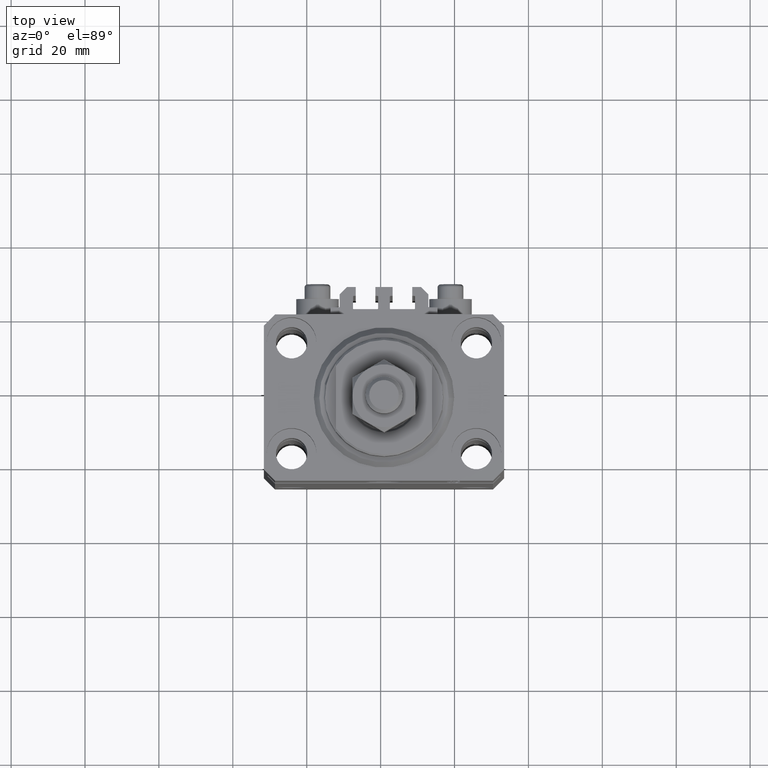
[diagram: clean part render]
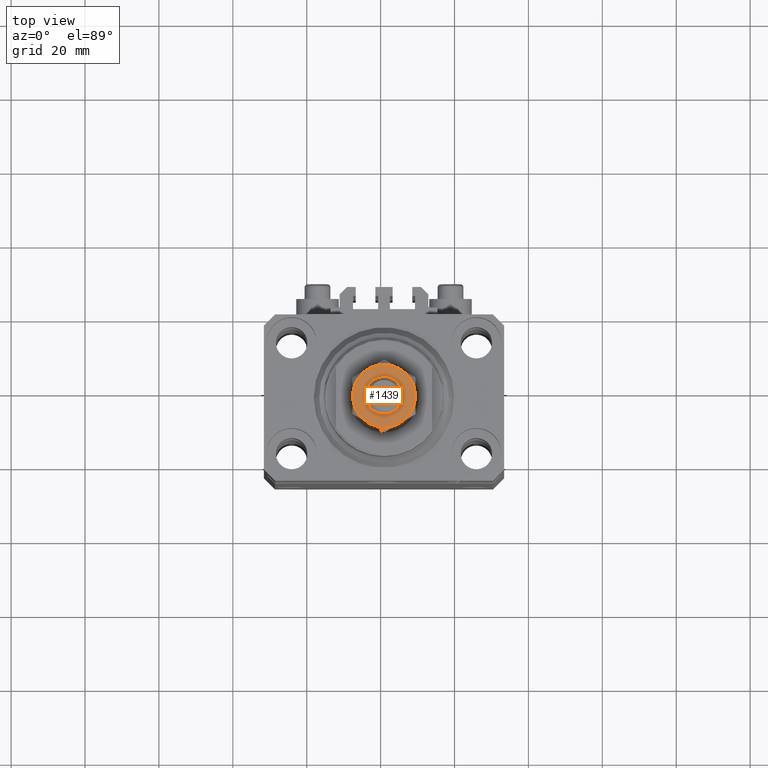
[diagram: same view with one face highlighted and labeled with its STEP entity id]
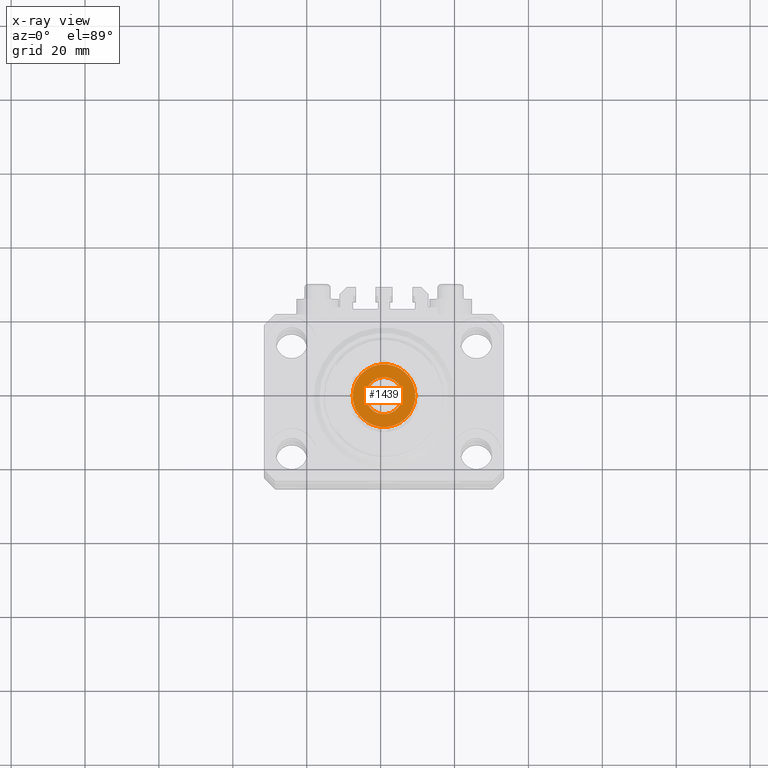
[diagram: x-ray of the same camera — body ghosted, the highlighted face saturated]
A machine part, top view. The second image highlights one B-rep face of the part: STEP entity #1439.
The next image is the same camera in x-ray: the body ghosted, the highlighted face saturated — about 0% of this face is hidden behind the body in this view.
In plain terms, the highlighted planar face has unit normal (0, 0, 1).
Its self-contained STEP definition (entity closure, byte-faithful):
#116 = VERTEX_POINT ( 'NONE', #26480 ) ;
#499 = EDGE_CURVE ( 'NONE', #37170, #18549, #37032, .T. ) ;
#715 = DIRECTION ( 'NONE',  ( 1.000000000000000000, 0.000000000000000000, 0.000000000000000000 ) ) ;
#1439 = ADVANCED_FACE ( 'NONE', ( #24409, #28880 ), #39626, .T. ) ;
#2340 = EDGE_CURVE ( 'NONE', #116, #26099, #45126, .T. ) ;
#2808 = AXIS2_PLACEMENT_3D ( 'NONE', #4213, #8452, #715 ) ;
#3590 = VERTEX_POINT ( 'NONE', #24716 ) ;
#3953 = CARTESIAN_POINT ( 'NONE',  ( 0.000000000000000000, 0.000000000000000000, 14.00000000000000000 ) ) ;
#4049 = EDGE_CURVE ( 'NONE', #13481, #40946, #43630, .T. ) ;
#4213 = CARTESIAN_POINT ( 'NONE',  ( 0.000000000000000000, 0.000000000000000000, 14.00000000000000000 ) ) ;
#5261 = CARTESIAN_POINT ( 'NONE',  ( 0.000000000000000000, 0.000000000000000000, 14.00000000000000000 ) ) ;
#5267 = CARTESIAN_POINT ( 'NONE',  ( -8.499999999999996447, 0.000000000000000000, 14.00000000000000000 ) ) ;
#6450 = DIRECTION ( 'NONE',  ( 0.000000000000000000, 0.000000000000000000, 1.000000000000000000 ) ) ;
#8178 = CIRCLE ( 'NONE', #36008, 8.499999999999996447 ) ;
#8368 = AXIS2_PLACEMENT_3D ( 'NONE', #10691, #6450, #21880 ) ;
#8452 = DIRECTION ( 'NONE',  ( 0.000000000000000000, -0.000000000000000000, 1.000000000000000000 ) ) ;
#9175 = ORIENTED_EDGE ( 'NONE', *, *, #499, .T. ) ;
#9680 = CARTESIAN_POINT ( 'NONE',  ( 0.000000000000000000, 0.000000000000000000, 14.00000000000000000 ) ) ;
#10522 = CIRCLE ( 'NONE', #38355, 5.000000000000000000 ) ;
#10691 = CARTESIAN_POINT ( 'NONE',  ( 0.000000000000000000, 0.000000000000000000, 14.00000000000000000 ) ) ;
#12746 = EDGE_LOOP ( 'NONE', ( #9175, #24530 ) ) ;
#12753 = DIRECTION ( 'NONE',  ( 0.000000000000000000, -0.000000000000000000, 1.000000000000000000 ) ) ;
#13473 = DIRECTION ( 'NONE',  ( 1.000000000000000000, 0.000000000000000000, 0.000000000000000000 ) ) ;
#13481 = VERTEX_POINT ( 'NONE', #20972 ) ;
#14207 = DIRECTION ( 'NONE',  ( 0.000000000000000000, -0.000000000000000000, 1.000000000000000000 ) ) ;
#14558 = ORIENTED_EDGE ( 'NONE', *, *, #4049, .T. ) ;
#14871 = DIRECTION ( 'NONE',  ( 1.000000000000000000, 0.000000000000000000, 0.000000000000000000 ) ) ;
#15486 = DIRECTION ( 'NONE',  ( -0.000000000000000000, 0.000000000000000000, -1.000000000000000000 ) ) ;
#16321 = CIRCLE ( 'NONE', #38563, 8.499999999999996447 ) ;
#16865 = EDGE_CURVE ( 'NONE', #26099, #40363, #8178, .T. ) ;
#17634 = DIRECTION ( 'NONE',  ( 1.000000000000000000, 0.000000000000000000, 0.000000000000000000 ) ) ;
#18549 = VERTEX_POINT ( 'NONE', #29917 ) ;
#18877 = AXIS2_PLACEMENT_3D ( 'NONE', #45510, #48993, #14871 ) ;
#19408 = EDGE_CURVE ( 'NONE', #18549, #37170, #10522, .T. ) ;
#20972 = CARTESIAN_POINT ( 'NONE',  ( 4.250000000000000000, -7.361215932167723963, 14.00000000000000000 ) ) ;
#21290 = ORIENTED_EDGE ( 'NONE', *, *, #31359, .T. ) ;
#21880 = DIRECTION ( 'NONE',  ( 1.000000000000000000, 0.000000000000000000, 0.000000000000000000 ) ) ;
#23182 = DIRECTION ( 'NONE',  ( 1.000000000000000000, 0.000000000000000000, 0.000000000000000000 ) ) ;
#23681 = CARTESIAN_POINT ( 'NONE',  ( 0.000000000000000000, 0.000000000000000000, 14.00000000000000000 ) ) ;
#24409 = FACE_BOUND ( 'NONE', #12746, .T. ) ;
#24530 = ORIENTED_EDGE ( 'NONE', *, *, #19408, .T. ) ;
#24716 = CARTESIAN_POINT ( 'NONE',  ( 4.249999999999999112, 7.361215932167725740, 14.00000000000000000 ) ) ;
#24840 = DIRECTION ( 'NONE',  ( 1.000000000000000000, 0.000000000000000000, 0.000000000000000000 ) ) ;
#25195 = EDGE_CURVE ( 'NONE', #40363, #13481, #16321, .T. ) ;
#25761 = ORIENTED_EDGE ( 'NONE', *, *, #27255, .T. ) ;
#26099 = VERTEX_POINT ( 'NONE', #5267 ) ;
#26480 = CARTESIAN_POINT ( 'NONE',  ( -4.250000000000000000, 7.361215932167723963, 14.00000000000000000 ) ) ;
#26839 = DIRECTION ( 'NONE',  ( 0.000000000000000000, -0.000000000000000000, 1.000000000000000000 ) ) ;
#27255 = EDGE_CURVE ( 'NONE', #3590, #116, #31476, .T. ) ;
#28880 = FACE_OUTER_BOUND ( 'NONE', #39867, .T. ) ;
#29064 = CARTESIAN_POINT ( 'NONE',  ( 0.000000000000000000, 0.000000000000000000, 14.00000000000000000 ) ) ;
#29917 = CARTESIAN_POINT ( 'NONE',  ( -5.000000000000000000, 6.123233995736766282E-16, 13.99999999999999822 ) ) ;
#29953 = CARTESIAN_POINT ( 'NONE',  ( 5.000000000000000000, 0.000000000000000000, 13.99999999999999822 ) ) ;
#31359 = EDGE_CURVE ( 'NONE', #40946, #3590, #44159, .T. ) ;
#31476 = CIRCLE ( 'NONE', #2808, 8.499999999999996447 ) ;
#32125 = CARTESIAN_POINT ( 'NONE',  ( 0.000000000000000000, 0.000000000000000000, 14.00000000000000000 ) ) ;
#32170 = ORIENTED_EDGE ( 'NONE', *, *, #25195, .T. ) ;
#34881 = AXIS2_PLACEMENT_3D ( 'NONE', #5261, #12753, #13473 ) ;
#35062 = ORIENTED_EDGE ( 'NONE', *, *, #16865, .T. ) ;
#36008 = AXIS2_PLACEMENT_3D ( 'NONE', #3953, #26839, #42056 ) ;
#37032 = CIRCLE ( 'NONE', #47359, 5.000000000000000000 ) ;
#37170 = VERTEX_POINT ( 'NONE', #29953 ) ;
#38322 = ORIENTED_EDGE ( 'NONE', *, *, #2340, .T. ) ;
#38355 = AXIS2_PLACEMENT_3D ( 'NONE', #9680, #43542, #24840 ) ;
#38563 = AXIS2_PLACEMENT_3D ( 'NONE', #29064, #44278, #17634 ) ;
#39592 = CARTESIAN_POINT ( 'NONE',  ( -4.250000000000000888, -7.361215932167725740, 14.00000000000000000 ) ) ;
#39626 = PLANE ( 'NONE',  #45955 ) ;
#39867 = EDGE_LOOP ( 'NONE', ( #14558, #21290, #25761, #38322, #35062, #32170 ) ) ;
#40363 = VERTEX_POINT ( 'NONE', #39592 ) ;
#40946 = VERTEX_POINT ( 'NONE', #41020 ) ;
#41020 = CARTESIAN_POINT ( 'NONE',  ( 8.499999999999996447, 1.502314598737159820E-15, 14.00000000000000000 ) ) ;
#42056 = DIRECTION ( 'NONE',  ( 1.000000000000000000, 0.000000000000000000, 0.000000000000000000 ) ) ;
#43542 = DIRECTION ( 'NONE',  ( -0.000000000000000000, 0.000000000000000000, -1.000000000000000000 ) ) ;
#43630 = CIRCLE ( 'NONE', #34881, 8.499999999999996447 ) ;
#44159 = CIRCLE ( 'NONE', #8368, 8.499999999999996447 ) ;
#44278 = DIRECTION ( 'NONE',  ( 0.000000000000000000, -0.000000000000000000, 1.000000000000000000 ) ) ;
#45126 = CIRCLE ( 'NONE', #18877, 8.499999999999996447 ) ;
#45510 = CARTESIAN_POINT ( 'NONE',  ( 0.000000000000000000, 0.000000000000000000, 14.00000000000000000 ) ) ;
#45955 = AXIS2_PLACEMENT_3D ( 'NONE', #32125, #14207, #47593 ) ;
#47359 = AXIS2_PLACEMENT_3D ( 'NONE', #23681, #15486, #23182 ) ;
#47593 = DIRECTION ( 'NONE',  ( 1.000000000000000000, 0.000000000000000000, -0.000000000000000000 ) ) ;
#48993 = DIRECTION ( 'NONE',  ( 0.000000000000000000, -0.000000000000000000, 1.000000000000000000 ) ) ;